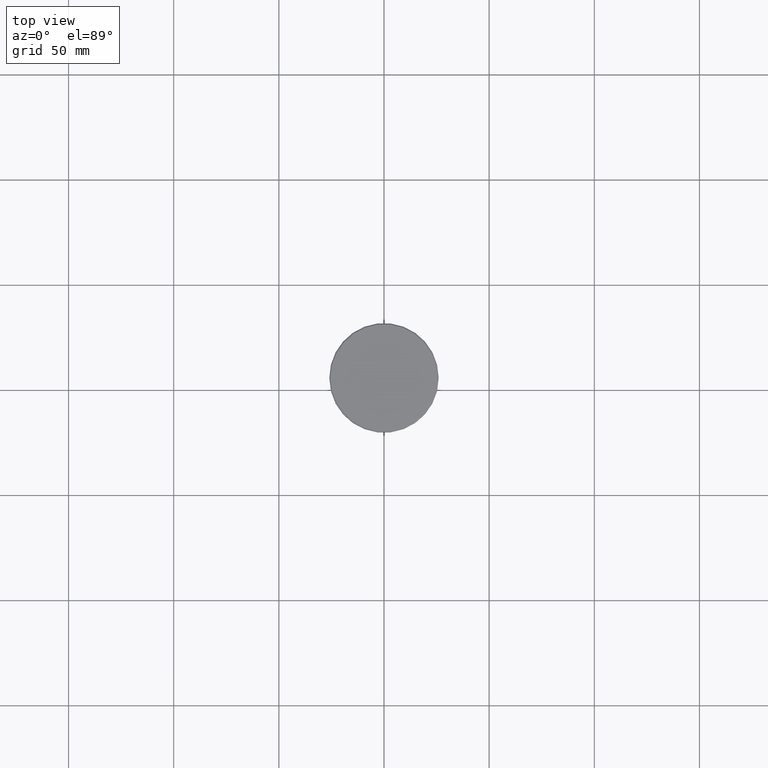
[diagram: clean part render]
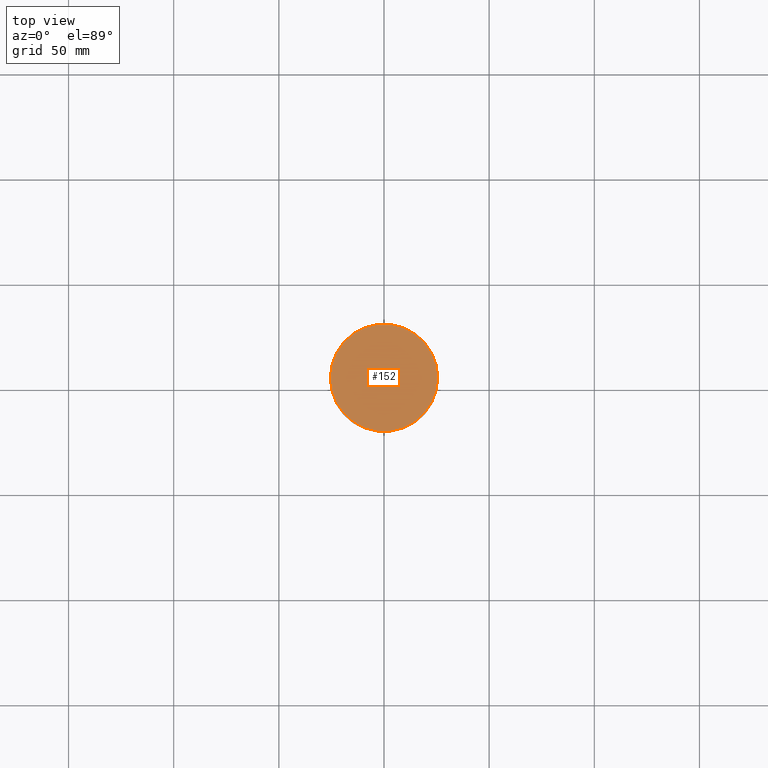
[diagram: same view with one face highlighted and labeled with its STEP entity id]
A machine part, top view. The second image highlights one B-rep face of the part: STEP entity #152.
In plain terms, the highlighted planar face has unit normal (0, -0, 1).
Its self-contained STEP definition (entity closure, byte-faithful):
#27 = VERTEX_POINT ( 'NONE', #378 ) ;
#30 = DIRECTION ( 'NONE',  ( -0.000000000000000000, -0.000000000000000000, 1.000000000000000000 ) ) ;
#46 = CARTESIAN_POINT ( 'NONE',  ( 0.000000000000000000, 0.000000000000000000, 0.000000000000000000 ) ) ;
#152 = ADVANCED_FACE ( 'NONE', ( #991 ), #444, .T. ) ;
#194 = EDGE_LOOP ( 'NONE', ( #1091, #1181 ) ) ;
#231 = DIRECTION ( 'NONE',  ( -0.000000000000000000, -0.000000000000000000, 1.000000000000000000 ) ) ;
#277 = VERTEX_POINT ( 'NONE', #600 ) ;
#378 = CARTESIAN_POINT ( 'NONE',  ( -25.50000000000005329, 0.000000000000000000, 0.000000000000000000 ) ) ;
#444 = PLANE ( 'NONE',  #940 ) ;
#565 = AXIS2_PLACEMENT_3D ( 'NONE', #46, #30, #684 ) ;
#591 = DIRECTION ( 'NONE',  ( 1.000000000000000000, 0.000000000000000000, 0.000000000000000000 ) ) ;
#600 = CARTESIAN_POINT ( 'NONE',  ( 25.50000000000005329, 3.153465507804437559E-15, 0.000000000000000000 ) ) ;
#622 = DIRECTION ( 'NONE',  ( 0.000000000000000000, -0.000000000000000000, 1.000000000000000000 ) ) ;
#684 = DIRECTION ( 'NONE',  ( 1.000000000000000000, 0.000000000000000000, 0.000000000000000000 ) ) ;
#801 = CARTESIAN_POINT ( 'NONE',  ( 0.000000000000000000, 0.000000000000000000, 0.000000000000000000 ) ) ;
#940 = AXIS2_PLACEMENT_3D ( 'NONE', #801, #622, #1167 ) ;
#972 = EDGE_CURVE ( 'NONE', #277, #27, #1119, .T. ) ;
#991 = FACE_OUTER_BOUND ( 'NONE', #194, .T. ) ;
#1022 = AXIS2_PLACEMENT_3D ( 'NONE', #1134, #231, #591 ) ;
#1077 = CIRCLE ( 'NONE', #565, 25.50000000000005329 ) ;
#1079 = EDGE_CURVE ( 'NONE', #27, #277, #1077, .T. ) ;
#1091 = ORIENTED_EDGE ( 'NONE', *, *, #1079, .T. ) ;
#1119 = CIRCLE ( 'NONE', #1022, 25.50000000000005329 ) ;
#1134 = CARTESIAN_POINT ( 'NONE',  ( 0.000000000000000000, 0.000000000000000000, 0.000000000000000000 ) ) ;
#1167 = DIRECTION ( 'NONE',  ( 1.000000000000000000, 0.000000000000000000, 0.000000000000000000 ) ) ;
#1181 = ORIENTED_EDGE ( 'NONE', *, *, #972, .T. ) ;